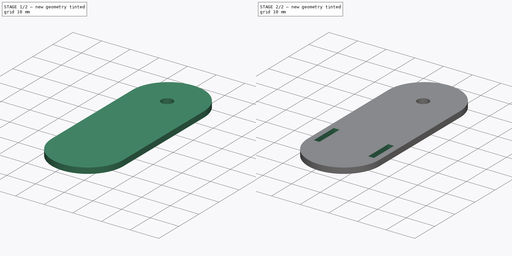
[diagram: build sequence overview — one tinted view per stage of 2, left to right]
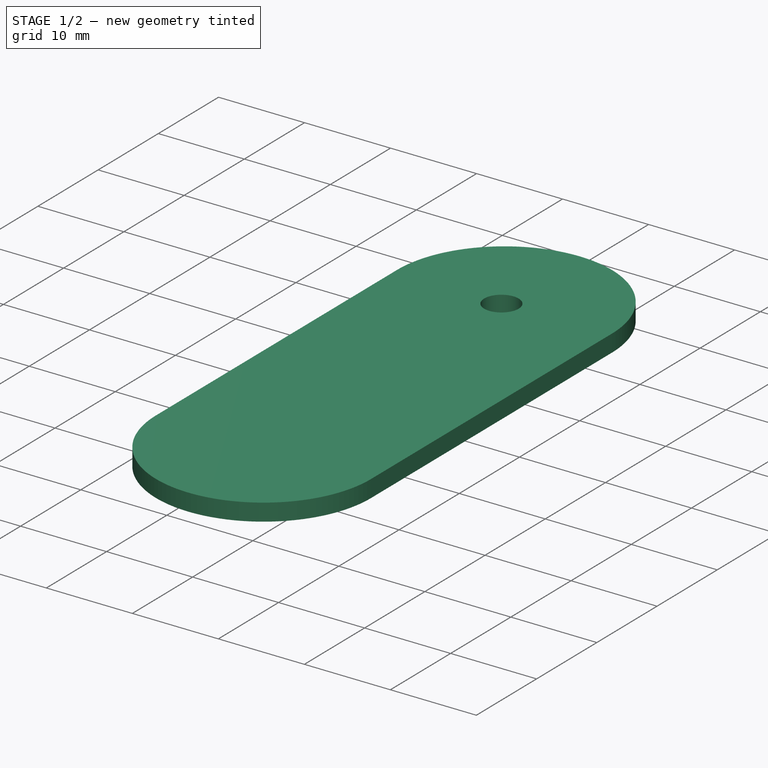
[diagram: stage 1 of 2 — iso view after this stage's code; geometry added in this stage tinted green]
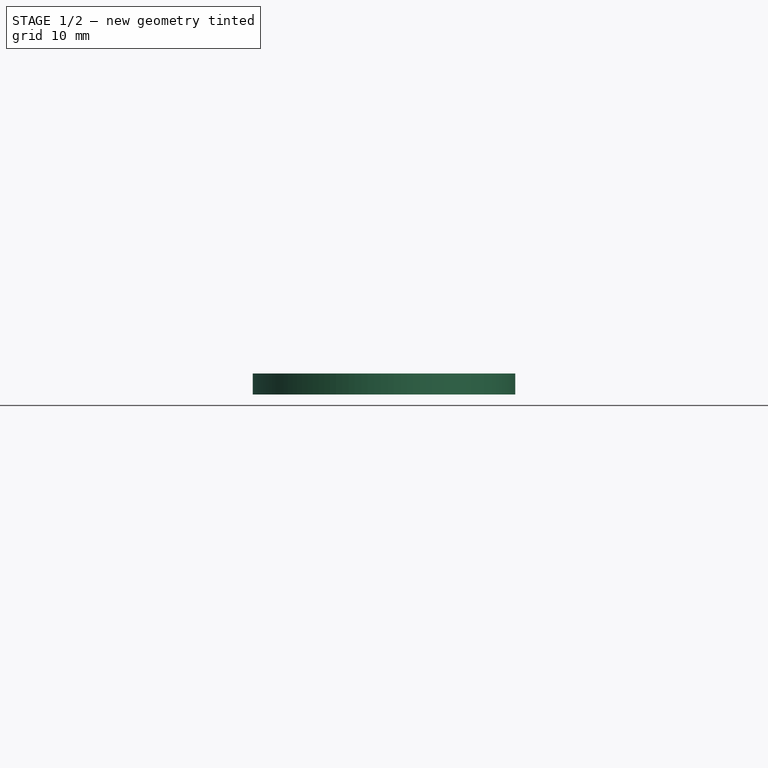
[diagram: stage 1 of 2 — front view after this stage's code; geometry added in this stage tinted green]
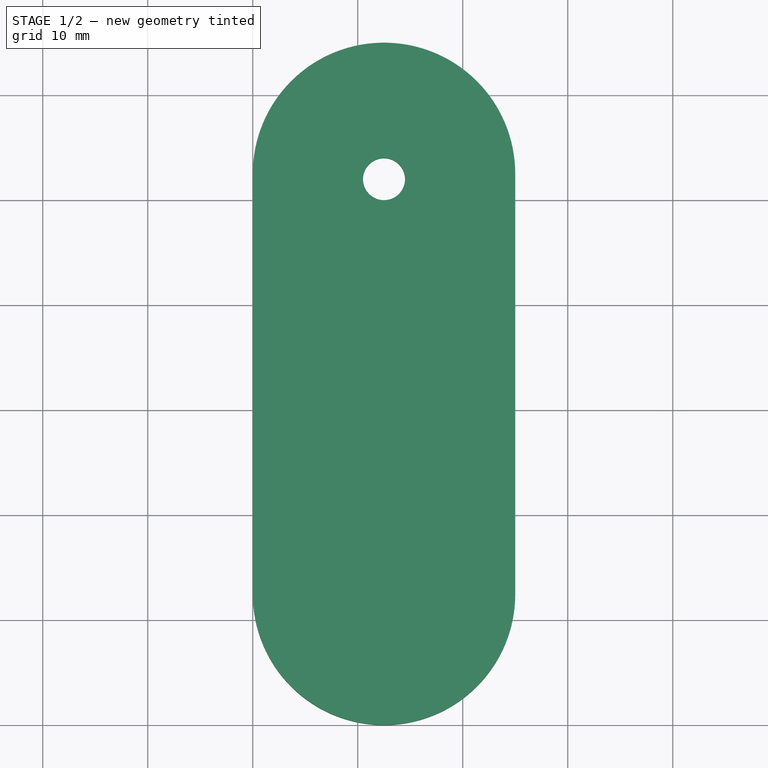
[diagram: stage 1 of 2 — top view after this stage's code; geometry added in this stage tinted green]
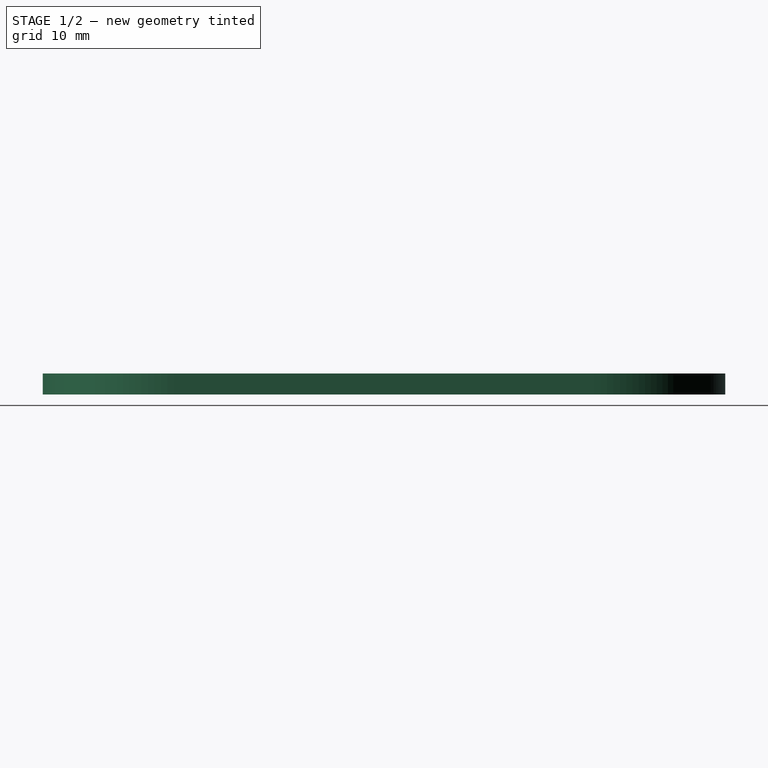
[diagram: stage 1 of 2 — right view after this stage's code; geometry added in this stage tinted green]
FCSTD DOCUMENT  (FreeCAD 0.18R16131 (Git))
Label: hip_bas_10
License: All rights reserved
LicenseURL: http://en.wikipedia.org/wiki/All_rights_reserved
objects: Sketcher::SketchObject×3, PartDesign::Pocket×2, PartDesign::Pad×1, PartDesign::Body×1
note: 10 computed .brp shape members not serialized (recipe doc carries the construction recipe); baked Part::Feature solids carry a one-line shape summary decoded from their .brp

FEATURE [Sketcher::SketchObject] Sketch003  label="encoches"
  MapMode = 5
  Support = -> [XY_Plane]
  sketch-geometry (8):
    g0: LineSegment StartX=2 StartY=22.5 StartZ=0 EndX=4 EndY=22.5 EndZ=0
    g1: LineSegment StartX=4 StartY=22.5 StartZ=0 EndX=4 EndY=12.5 EndZ=0
    g2: LineSegment StartX=4 StartY=12.5 StartZ=0 EndX=2 EndY=12.5 EndZ=0
    g3: LineSegment StartX=2 StartY=12.5 StartZ=0 EndX=2 EndY=22.5 EndZ=0
    g4: LineSegment StartX=21 StartY=22.5 StartZ=0 EndX=23 EndY=22.5 EndZ=0
    g5: LineSegment StartX=23 StartY=22.5 StartZ=0 EndX=23 EndY=12.5 EndZ=0
    g6: LineSegment StartX=23 StartY=12.5 StartZ=0 EndX=21 EndY=12.5 EndZ=0
    g7: LineSegment StartX=21 StartY=12.5 StartZ=0 EndX=21 EndY=22.5 EndZ=0
  constraints (24):
    c: Coincident(g0,g1)
    c: Coincident(g1,g2)
    c: Coincident(g2,g3)
    c: Coincident(g3,g0)
    c: Horizontal(g0)
    c: Horizontal(g2)
    c: Vertical(g1)
    c: Vertical(g3)
    c: DistanceX(g0,g0) = 2
    c: DistanceY(g1,g1) = 10
    c: DistanceX(g-1,g2) = 2
    c: DistanceY(g-1,g2) = 12.5
    c: Coincident(g4,g5)
    c: Coincident(g5,g6)
    c: Coincident(g6,g7)
    c: Coincident(g7,g4)
    c: Horizontal(g4)
    c: Horizontal(g6)
    c: Vertical(g5)
    c: Vertical(g7)
    c: Equal(g0,g4) = 2
    c: Equal(g1,g5) = 10
    c: DistanceX(g1,g6) = 17
    c: Horizontal(g6,g2)
FEATURE [Sketcher::SketchObject] Sketch002  label="Trou_PivotSurM2"
  MapMode = 5
  Support = -> [XY_Plane]
  sketch-geometry (1):
    g0: Circle CenterX=12.5 CenterY=52 CenterZ=0 NormalX=0 NormalY=0 NormalZ=1 AngleXU=0 Radius=2
  constraints (3):
    c: Radius(g0) = 2
    c: DistanceX(g-1,g0) = 12.5
    c: DistanceY(g-1,g0) = 52
FEATURE [Sketcher::SketchObject] CopySketch
  MapMode = 5
  Support = -> [XY_Plane]
  sketch-geometry (4):
    g0: ArcOfCircle CenterX=12.5 CenterY=12.5 CenterZ=0 NormalX=0 NormalY=0 NormalZ=1 AngleXU=0 Radius=12.5 StartAngle=3.14159 EndAngle=6.28319
    g1: ArcOfCircle CenterX=12.5 CenterY=52.5 CenterZ=0 NormalX=0 NormalY=0 NormalZ=1 AngleXU=0 Radius=12.5 StartAngle=3e-16 EndAngle=3.14159
    g2: LineSegment StartX=25 StartY=12.5 StartZ=0 EndX=25 EndY=52.5 EndZ=0
    g3: LineSegment StartX=2.4478e-12 StartY=12.5 StartZ=0 EndX=2.4514e-12 EndY=52.5 EndZ=0
  constraints (10):
    c: Tangent(g0,g3) = 1.5708
    c: Tangent(g0,g2) = -1.5708
    c: Tangent(g2,g1) = -1.5708
    c: Tangent(g3,g1) = 1.5708
    c: Vertical(g2)
    c: Equal(g0,g1)
    c: Radius(g1) = 12.5
    c: Tangent(g-1,g0)
    c: PointOnObject(g0,g-2)
    c: DistanceY(g3,g3) = 40
FEATURE [PartDesign::Pad] Pad
  Length = 2
  Length2 = 100
  Midplane = true
  Profile = -> CopySketch
  Type = 0
FEATURE [PartDesign::Pocket] Pocket
  BaseFeature = -> Pad
  Length = 5
  Length2 = 100
  Midplane = true
  Profile = -> Sketch002
  Type = 1
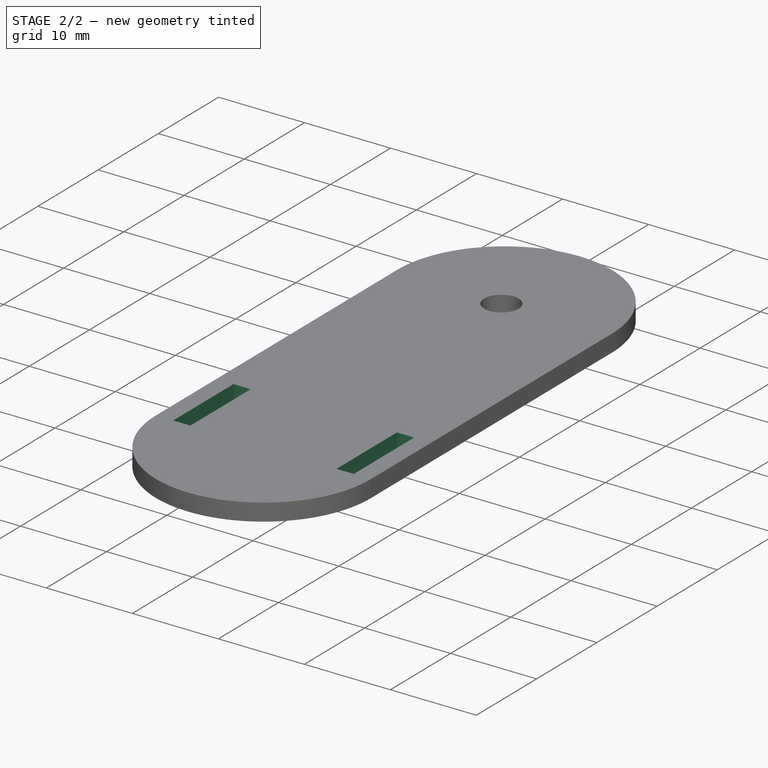
[diagram: stage 2 of 2 — iso view after this stage's code; geometry added in this stage tinted green]
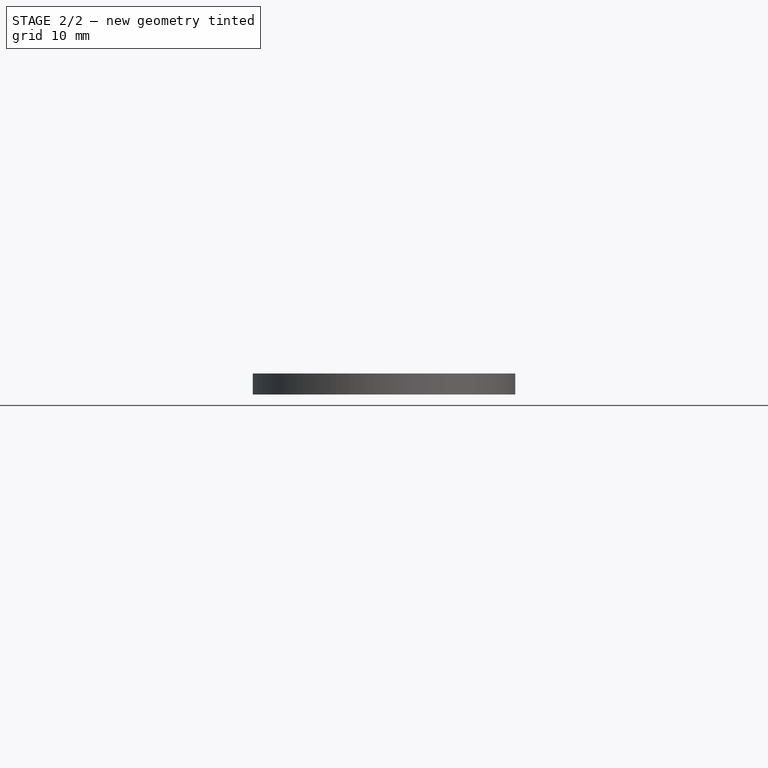
[diagram: stage 2 of 2 — front view after this stage's code; geometry added in this stage tinted green]
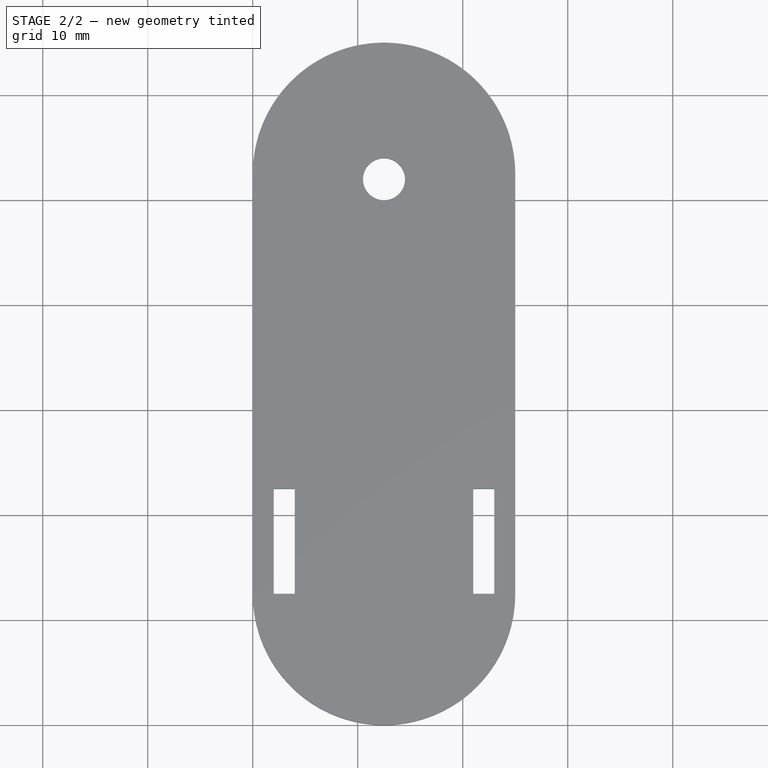
[diagram: stage 2 of 2 — top view after this stage's code; geometry added in this stage tinted green]
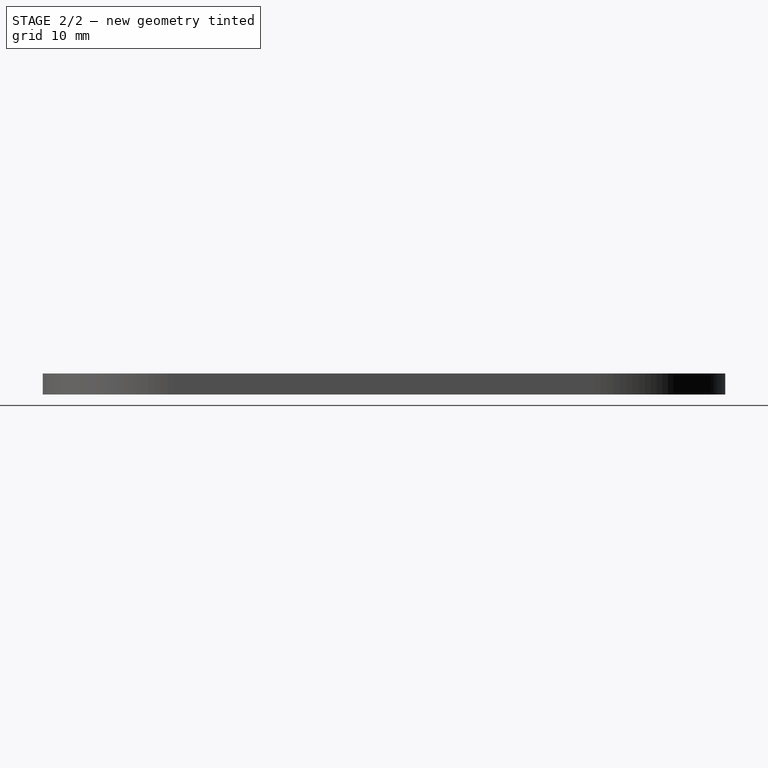
[diagram: stage 2 of 2 — right view after this stage's code; geometry added in this stage tinted green]
FEATURE [PartDesign::Pocket] Pocket002
  BaseFeature = -> Pocket
  Length = 5
  Length2 = 100
  Midplane = true
  Profile = -> Sketch003
  Type = 1
FEATURE [PartDesign::Body] Body
  Group = -> [Sketch002,CopySketch,Pad,Pocket,Sketch003,Pocket002]
  Origin = -> Origin
  Tip = -> Pocket002
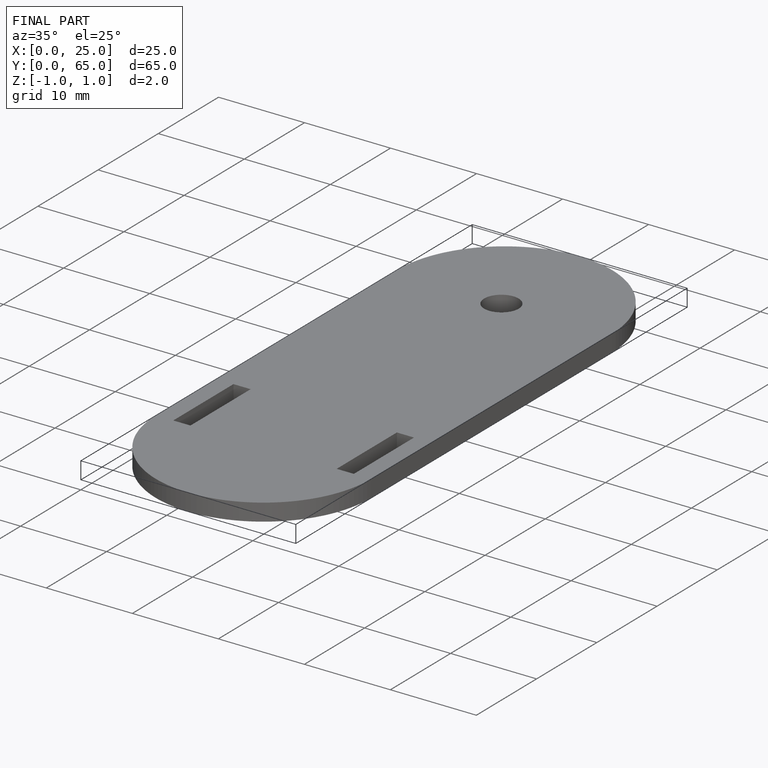
[diagram: finished part — iso view with bounding-box wireframe]
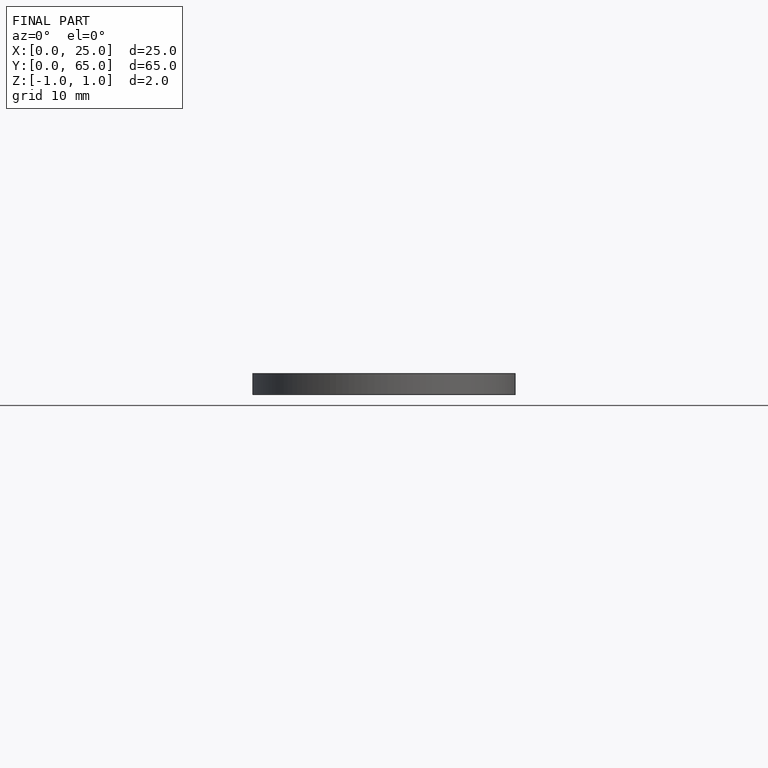
[diagram: finished part — front view with bounding-box wireframe]
